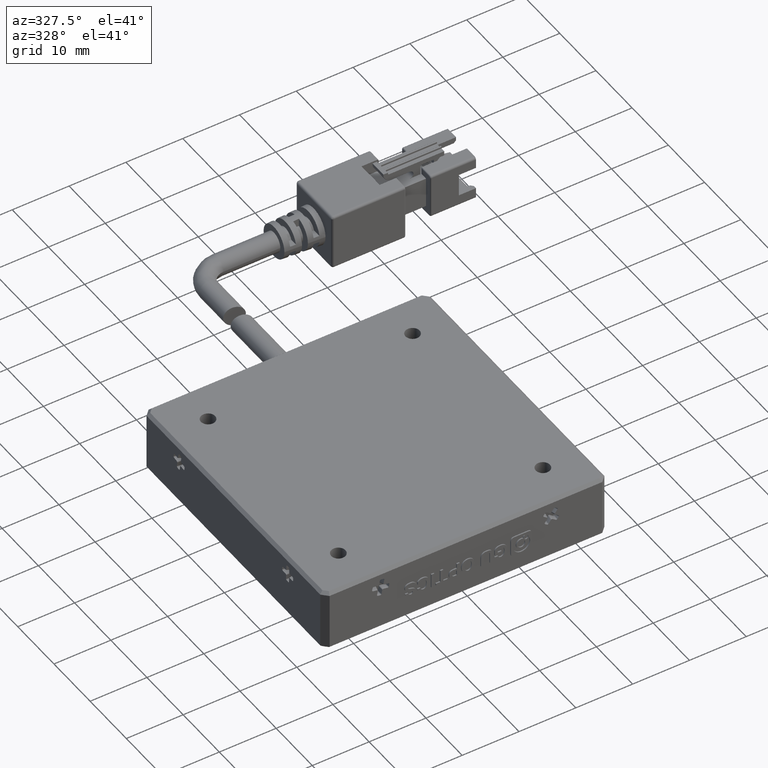
[diagram: clean part render]
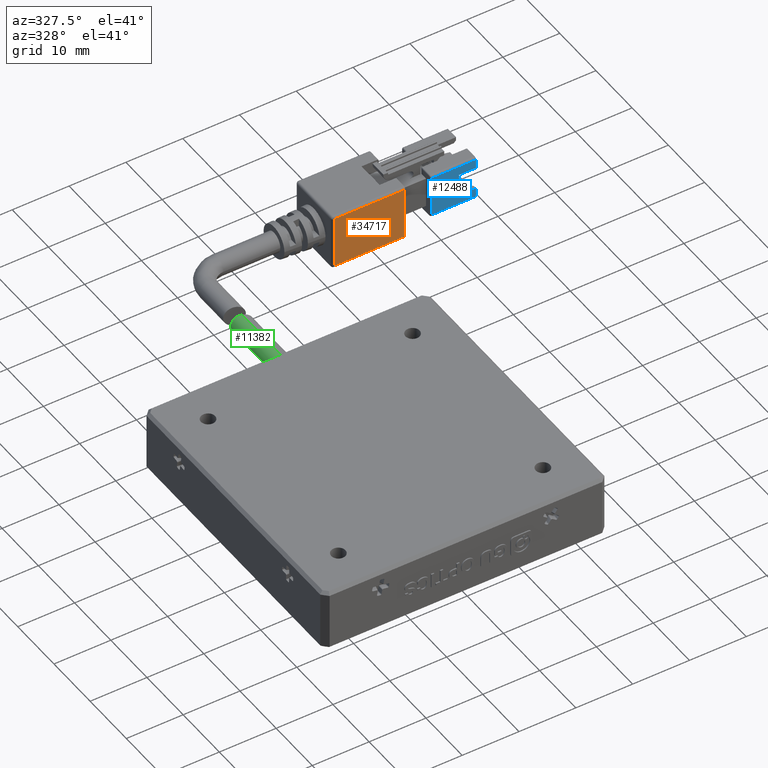
[diagram: same view with three faces highlighted in distinct colors, each labeled with its STEP entity id]
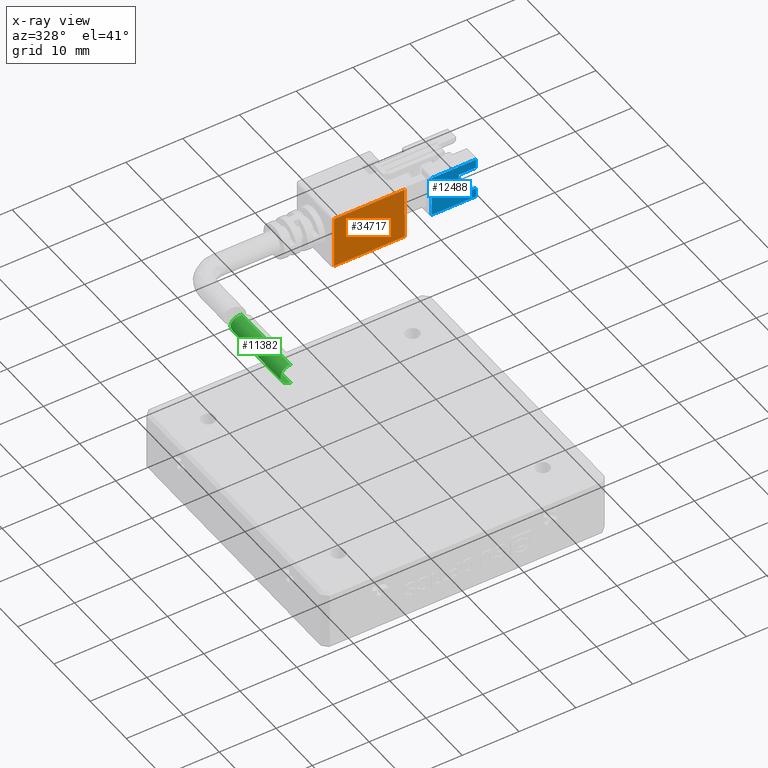
[diagram: x-ray of the same camera — body ghosted, the three highlighted faces saturated]
A machine part, auxiliary view with three faces highlighted in distinct colors.
The next image is the same camera in x-ray (body ghosted, the three faces saturated) — at least one of them is partly hidden behind the body in this view.
Their STEP definitions:

[orange] entity #34717 — the highlighted planar face has unit normal (0, 1, -0).
#2721 = EDGE_CURVE ( 'NONE', #19590, #29000, #23058, .T. ) ;
#3935 = VERTEX_POINT ( 'NONE', #39005 ) ;
#4301 = ORIENTED_EDGE ( 'NONE', *, *, #2721, .F. ) ;
#5488 = DIRECTION ( 'NONE',  ( -1.000000000000000000, -0.0000000000000000000, -0.0000000000000000000 ) ) ;
#6824 = DIRECTION ( 'NONE',  ( 0.0000000000000000000, 8.673617379884034200E-017, 1.000000000000000000 ) ) ;
#7970 = DIRECTION ( 'NONE',  ( 1.000000000000000000, 0.0000000000000000000, 0.0000000000000000000 ) ) ;
#8782 = LINE ( 'NONE', #22931, #16406 ) ;
#9536 = CARTESIAN_POINT ( 'NONE',  ( 40.66702531645572100, 59.21113924050632700, 3.349999999999991700 ) ) ;
#10172 = EDGE_LOOP ( 'NONE', ( #15700, #27868, #4301, #20556 ) ) ;
#10892 = EDGE_CURVE ( 'NONE', #29000, #30899, #40253, .T. ) ;
#14318 = VECTOR ( 'NONE', #7970, 1000.000000000000000 ) ;
#15015 = EDGE_CURVE ( 'NONE', #3935, #19590, #33910, .T. ) ;
#15292 = CARTESIAN_POINT ( 'NONE',  ( 53.06702531645572000, 59.21113924050632700, 3.349999999999990800 ) ) ;
#15700 = ORIENTED_EDGE ( 'NONE', *, *, #21250, .F. ) ;
#16406 = VECTOR ( 'NONE', #22642, 1000.000000000000000 ) ;
#18608 = DIRECTION ( 'NONE',  ( 0.0000000000000000000, 1.000000000000000000, -8.673617379884034200E-017 ) ) ;
#19590 = VERTEX_POINT ( 'NONE', #31488 ) ;
#20556 = ORIENTED_EDGE ( 'NONE', *, *, #15015, .F. ) ;
#21196 = CARTESIAN_POINT ( 'NONE',  ( 40.66702531645572100, 59.21113924050632700, -6.250000000000008900 ) ) ;
#21250 = EDGE_CURVE ( 'NONE', #30899, #3935, #8782, .T. ) ;
#22642 = DIRECTION ( 'NONE',  ( -0.0000000000000000000, -8.673617379884034200E-017, -1.000000000000000000 ) ) ;
#22931 = CARTESIAN_POINT ( 'NONE',  ( 53.06702531645572000, 59.21113924050632700, -6.250000000000008900 ) ) ;
#23058 = LINE ( 'NONE', #21196, #39335 ) ;
#25254 = VECTOR ( 'NONE', #5488, 1000.000000000000000 ) ;
#27212 = AXIS2_PLACEMENT_3D ( 'NONE', #38062, #18608, #41389 ) ;
#27466 = CARTESIAN_POINT ( 'NONE',  ( 53.26702531645571500, 59.21113924050632700, 3.349999999999991700 ) ) ;
#27868 = ORIENTED_EDGE ( 'NONE', *, *, #10892, .F. ) ;
#29000 = VERTEX_POINT ( 'NONE', #9536 ) ;
#30899 = VERTEX_POINT ( 'NONE', #15292 ) ;
#31377 = PLANE ( 'NONE',  #27212 ) ;
#31421 = CARTESIAN_POINT ( 'NONE',  ( 53.26702531645571500, 59.21113924050632700, -5.850000000000009400 ) ) ;
#31488 = CARTESIAN_POINT ( 'NONE',  ( 40.66702531645572100, 59.21113924050632700, -5.850000000000009400 ) ) ;
#33910 = LINE ( 'NONE', #31421, #25254 ) ;
#34717 = ADVANCED_FACE ( 'NONE', ( #39523 ), #31377, .F. ) ;
#38062 = CARTESIAN_POINT ( 'NONE',  ( 53.26702531645571500, 59.21113924050632700, -6.250000000000008900 ) ) ;
#39005 = CARTESIAN_POINT ( 'NONE',  ( 53.06702531645572000, 59.21113924050632700, -5.850000000000009400 ) ) ;
#39335 = VECTOR ( 'NONE', #6824, 1000.000000000000000 ) ;
#39523 = FACE_OUTER_BOUND ( 'NONE', #10172, .T. ) ;
#40253 = LINE ( 'NONE', #27466, #14318 ) ;
#41389 = DIRECTION ( 'NONE',  ( 0.0000000000000000000, 8.673617379884034200E-017, 1.000000000000000000 ) ) ;

[blue] entity #12488 — the highlighted planar face has unit normal (0, 1, -0).
#1308 = DIRECTION ( 'NONE',  ( -0.0000000000000000000, -8.673617379884034200E-017, -1.000000000000000000 ) ) ;
#1590 = CARTESIAN_POINT ( 'NONE',  ( 63.26702531645572900, 60.21113924050634100, -5.250000000000000900 ) ) ;
#3668 = CARTESIAN_POINT ( 'NONE',  ( 63.26702531645572900, 60.21113924050634100, 0.7499999999999997800 ) ) ;
#4091 = EDGE_CURVE ( 'NONE', #34278, #22141, #28215, .T. ) ;
#4109 = ORIENTED_EDGE ( 'NONE', *, *, #37075, .F. ) ;
#4428 = LINE ( 'NONE', #30375, #29248 ) ;
#4490 = ORIENTED_EDGE ( 'NONE', *, *, #11847, .F. ) ;
#6091 = CARTESIAN_POINT ( 'NONE',  ( 66.26702531645572900, 60.21113924050634100, -4.850000000000000500 ) ) ;
#6319 = CARTESIAN_POINT ( 'NONE',  ( 66.26702531645572900, 60.21113924050634100, 2.350000000000000500 ) ) ;
#6558 = VERTEX_POINT ( 'NONE', #22929 ) ;
#6639 = DIRECTION ( 'NONE',  ( 1.000000000000000000, 0.0000000000000000000, 0.0000000000000000000 ) ) ;
#6889 = ORIENTED_EDGE ( 'NONE', *, *, #19531, .F. ) ;
#7015 = LINE ( 'NONE', #7517, #23186 ) ;
#7432 = VECTOR ( 'NONE', #20523, 1000.000000000000000 ) ;
#7517 = CARTESIAN_POINT ( 'NONE',  ( 66.26702531645572900, 60.21113924050634100, 0.7499999999999997800 ) ) ;
#8277 = DIRECTION ( 'NONE',  ( 0.0000000000000000000, 1.000000000000000000, -8.673617379884034200E-017 ) ) ;
#8924 = EDGE_LOOP ( 'NONE', ( #42154, #25329, #6889, #38362, #4109, #17506, #4490, #20056 ) ) ;
#9140 = LINE ( 'NONE', #9842, #25327 ) ;
#9716 = VERTEX_POINT ( 'NONE', #6319 ) ;
#9842 = CARTESIAN_POINT ( 'NONE',  ( 66.26702531645572900, 60.21113924050634100, 2.350000000000000500 ) ) ;
#10754 = VERTEX_POINT ( 'NONE', #6091 ) ;
#11096 = CARTESIAN_POINT ( 'NONE',  ( 66.26702531645572900, 60.21113924050634100, -4.850000000000000500 ) ) ;
#11286 = CARTESIAN_POINT ( 'NONE',  ( 66.26702531645572900, 60.21113924050634100, -3.250000000000000400 ) ) ;
#11847 = EDGE_CURVE ( 'NONE', #9716, #37979, #4428, .T. ) ;
#12488 = ADVANCED_FACE ( 'NONE', ( #23062 ), #14646, .F. ) ;
#14646 = PLANE ( 'NONE',  #23760 ) ;
#15535 = VECTOR ( 'NONE', #40537, 1000.000000000000000 ) ;
#16430 = CARTESIAN_POINT ( 'NONE',  ( 66.26702531645572900, 60.21113924050634100, 0.7499999999999997800 ) ) ;
#17289 = DIRECTION ( 'NONE',  ( 1.000000000000000000, 0.0000000000000000000, 0.0000000000000000000 ) ) ;
#17339 = VERTEX_POINT ( 'NONE', #40598 ) ;
#17472 = DIRECTION ( 'NONE',  ( -1.000000000000000000, -0.0000000000000000000, -0.0000000000000000000 ) ) ;
#17506 = ORIENTED_EDGE ( 'NONE', *, *, #18816, .F. ) ;
#18816 = EDGE_CURVE ( 'NONE', #37979, #41832, #7015, .T. ) ;
#19531 = EDGE_CURVE ( 'NONE', #22141, #10754, #24070, .T. ) ;
#20056 = ORIENTED_EDGE ( 'NONE', *, *, #32788, .F. ) ;
#20523 = DIRECTION ( 'NONE',  ( -0.0000000000000000000, 8.673617379884034200E-017, 1.000000000000000000 ) ) ;
#20649 = LINE ( 'NONE', #11096, #37924 ) ;
#20694 = CARTESIAN_POINT ( 'NONE',  ( 66.26702531645572900, 60.21113924050634100, -3.250000000000000400 ) ) ;
#22141 = VERTEX_POINT ( 'NONE', #11286 ) ;
#22929 = CARTESIAN_POINT ( 'NONE',  ( 58.46702531645571800, 60.21113924050633400, -4.850000000000000500 ) ) ;
#23062 = FACE_OUTER_BOUND ( 'NONE', #8924, .T. ) ;
#23186 = VECTOR ( 'NONE', #36847, 1000.000000000000000 ) ;
#23760 = AXIS2_PLACEMENT_3D ( 'NONE', #27644, #8277, #30924 ) ;
#24070 = LINE ( 'NONE', #34453, #31698 ) ;
#25104 = LINE ( 'NONE', #1590, #15535 ) ;
#25327 = VECTOR ( 'NONE', #6639, 1000.000000000000000 ) ;
#25329 = ORIENTED_EDGE ( 'NONE', *, *, #26317, .F. ) ;
#26075 = LINE ( 'NONE', #40012, #7432 ) ;
#26317 = EDGE_CURVE ( 'NONE', #10754, #6558, #20649, .T. ) ;
#27644 = CARTESIAN_POINT ( 'NONE',  ( 66.26702531645572900, 60.21113924050634100, -5.250000000000000900 ) ) ;
#28215 = LINE ( 'NONE', #20694, #36450 ) ;
#28265 = CARTESIAN_POINT ( 'NONE',  ( 63.26702531645572900, 60.21113924050634100, -3.250000000000000400 ) ) ;
#29248 = VECTOR ( 'NONE', #1308, 1000.000000000000000 ) ;
#29694 = EDGE_CURVE ( 'NONE', #6558, #17339, #26075, .T. ) ;
#30375 = CARTESIAN_POINT ( 'NONE',  ( 66.26702531645572900, 60.21113924050634100, -5.250000000000000900 ) ) ;
#30924 = DIRECTION ( 'NONE',  ( 0.0000000000000000000, 8.673617379884034200E-017, 1.000000000000000000 ) ) ;
#31698 = VECTOR ( 'NONE', #37753, 1000.000000000000000 ) ;
#32788 = EDGE_CURVE ( 'NONE', #17339, #9716, #9140, .T. ) ;
#34278 = VERTEX_POINT ( 'NONE', #28265 ) ;
#34453 = CARTESIAN_POINT ( 'NONE',  ( 66.26702531645572900, 60.21113924050634100, -5.250000000000000900 ) ) ;
#36450 = VECTOR ( 'NONE', #17289, 1000.000000000000000 ) ;
#36847 = DIRECTION ( 'NONE',  ( -1.000000000000000000, -0.0000000000000000000, -0.0000000000000000000 ) ) ;
#37075 = EDGE_CURVE ( 'NONE', #41832, #34278, #25104, .T. ) ;
#37753 = DIRECTION ( 'NONE',  ( -0.0000000000000000000, -8.673617379884034200E-017, -1.000000000000000000 ) ) ;
#37924 = VECTOR ( 'NONE', #17472, 1000.000000000000000 ) ;
#37979 = VERTEX_POINT ( 'NONE', #16430 ) ;
#38362 = ORIENTED_EDGE ( 'NONE', *, *, #4091, .F. ) ;
#40012 = CARTESIAN_POINT ( 'NONE',  ( 58.46702531645571800, 60.21113924050634100, -5.250000000000000900 ) ) ;
#40537 = DIRECTION ( 'NONE',  ( -0.0000000000000000000, -8.673617379884034200E-017, -1.000000000000000000 ) ) ;
#40598 = CARTESIAN_POINT ( 'NONE',  ( 58.46702531645571800, 60.21113924050633400, 2.350000000000000500 ) ) ;
#41832 = VERTEX_POINT ( 'NONE', #3668 ) ;
#42154 = ORIENTED_EDGE ( 'NONE', *, *, #29694, .F. ) ;

[green] entity #11382 — the highlighted cylindrical surface (edge-blend (fillet) strip) has radius 1.75 mm, axis along (0, -1, -0).
#857 = CARTESIAN_POINT ( 'NONE',  ( 19.26702531645571900, 60.21113924050633400, -3.000000000000000900 ) ) ;
#1365 = CARTESIAN_POINT ( 'NONE',  ( 18.50102390046932000, 51.26736422642111500, 0.3275414602276816000 ) ) ;
#1504 = CARTESIAN_POINT ( 'NONE',  ( 17.60815372889123200, 51.47465085117010400, -1.819255601319850000 ) ) ;
#2734 = CARTESIAN_POINT ( 'NONE',  ( 19.26702531645571900, 37.71113924050633400, 0.4999999999999993300 ) ) ;
#3818 = VERTEX_POINT ( 'NONE', #2734 ) ;
#4659 = CARTESIAN_POINT ( 'NONE',  ( 18.21143578472794300, 51.33770603410356200, 0.1503924452868985700 ) ) ;
#4804 = CARTESIAN_POINT ( 'NONE',  ( 17.75357687663365200, 51.44324414000529800, -2.136094452726339500 ) ) ;
#4822 = EDGE_CURVE ( 'NONE', #26710, #3818, #17496, .T. ) ;
#4971 = EDGE_LOOP ( 'NONE', ( #26602, #8366, #16463, #26039 ) ) ;
#5047 = VECTOR ( 'NONE', #13906, 1000.000000000000000 ) ;
#5954 = VECTOR ( 'NONE', #41139, 1000.000000000000000 ) ;
#7611 = AXIS2_PLACEMENT_3D ( 'NONE', #14313, #37041, #17570 ) ;
#7794 = CARTESIAN_POINT ( 'NONE',  ( 19.15317297883747800, 51.10560421977334800, 0.5000000000000097700 ) ) ;
#7934 = CARTESIAN_POINT ( 'NONE',  ( 17.95791399073090100, 51.39723628691662300, -0.08303274940463600800 ) ) ;
#8079 = CARTESIAN_POINT ( 'NONE',  ( 17.95562652657233100, 51.39776500738536700, -2.414518377249289700 ) ) ;
#8366 = ORIENTED_EDGE ( 'NONE', *, *, #36569, .T. ) ;
#9533 = EDGE_CURVE ( 'NONE', #9917, #3818, #17602, .T. ) ;
#9807 = CARTESIAN_POINT ( 'NONE',  ( 19.26702531645571900, 51.07774175742921600, 0.4999999999999994400 ) ) ;
#9917 = VERTEX_POINT ( 'NONE', #9807 ) ;
#11158 = CARTESIAN_POINT ( 'NONE',  ( 17.75500086051044900, 51.44293161477345700, -0.3614208541719510800 ) ) ;
#11298 = CARTESIAN_POINT ( 'NONE',  ( 18.20907445193660500, 51.33827074209570200, -2.648609730858203300 ) ) ;
#11338 = AXIS2_PLACEMENT_3D ( 'NONE', #24716, #11831, #24855 ) ;
#11382 = ADVANCED_FACE ( 'NONE', ( #26346 ), #14732, .T. ) ;
#11831 = DIRECTION ( 'NONE',  ( 0.0000000000000000000, -1.000000000000000000, -2.465190328815661900E-032 ) ) ;
#13906 = DIRECTION ( 'NONE',  ( 0.0000000000000000000, -1.000000000000000000, -2.465190328815661900E-032 ) ) ;
#14313 = CARTESIAN_POINT ( 'NONE',  ( 19.26702531645571900, 37.71113924050633400, -1.250000000000000700 ) ) ;
#14424 = CARTESIAN_POINT ( 'NONE',  ( 17.56476368497835900, 51.48397505759760400, -0.7831707669404006600 ) ) ;
#14573 = CARTESIAN_POINT ( 'NONE',  ( 18.50031593087591400, 51.26753817131285700, -2.827185977533176700 ) ) ;
#14732 = CYLINDRICAL_SURFACE ( 'NONE', #11338, 1.750000000000000200 ) ;
#16463 = ORIENTED_EDGE ( 'NONE', *, *, #23968, .T. ) ;
#17098 = B_SPLINE_CURVE_WITH_KNOTS ( 'NONE', 3,
 ( #30425, #7794, #17533, #40289, #20793, #1365, #24038, #4659, #27301, #7934, #30558, #11158, #33857, #14424, #37140, #17690, #40444, #20926, #1504, #24184, #4804, #27430, #8079, #30702, #11298, #33983, #14573, #37264, #17818, #40588 ),
 .UNSPECIFIED., .F., .F.,
 ( 4, 2, 2, 2, 2, 2, 2, 2, 2, 2, 2, 2, 2, 2, 4 ),
 ( 1.672367353965386900E-016, 0.0003467046392156072400, 0.0006934092784310471800, 0.001040113917646487300, 0.001386818556861927200, 0.001733523196077367300, 0.002080227835292807600, 0.002773637113723683100, 0.003120341752939122100, 0.003467046392154560200, 0.003813751031369998800, 0.004160455670585437400, 0.004507160309800876400, 0.004853864949016315500, 0.005547274227447197800 ),
 .UNSPECIFIED. ) ;
#17496 = CIRCLE ( 'NONE', #7611, 1.750000000000000200 ) ;
#17533 = CARTESIAN_POINT ( 'NONE',  ( 19.04121266120223800, 51.13336203157422900, 0.4889997738812938400 ) ) ;
#17570 = DIRECTION ( 'NONE',  ( 0.0000000000000000000, 0.0000000000000000000, -1.000000000000000000 ) ) ;
#17602 = LINE ( 'NONE', #21574, #5954 ) ;
#17690 = CARTESIAN_POINT ( 'NONE',  ( 17.51689869884022600, 51.49369115073919500, -1.363737001967047400 ) ) ;
#17818 = CARTESIAN_POINT ( 'NONE',  ( 19.03930749363687600, 51.13346989965365500, -3.000000000000000000 ) ) ;
#18005 = CARTESIAN_POINT ( 'NONE',  ( 19.26702531645571900, 51.07774175742920900, -3.000000000000000900 ) ) ;
#20793 = CARTESIAN_POINT ( 'NONE',  ( 18.71132189873969800, 51.21538196720288700, 0.4133066282466355000 ) ) ;
#20926 = CARTESIAN_POINT ( 'NONE',  ( 17.57427517691907000, 51.48175972272255800, -1.708910500435165500 ) ) ;
#21574 = CARTESIAN_POINT ( 'NONE',  ( 19.26702531645571900, 60.21113924050633400, 0.4999999999999993300 ) ) ;
#22213 = LINE ( 'NONE', #857, #5047 ) ;
#23968 = EDGE_CURVE ( 'NONE', #39841, #26710, #22213, .T. ) ;
#24038 = CARTESIAN_POINT ( 'NONE',  ( 18.40106216585688900, 51.29187514963752600, 0.2749511736822387600 ) ) ;
#24184 = CARTESIAN_POINT ( 'NONE',  ( 17.69761553288155700, 51.45544030224126400, -2.032853635671762100 ) ) ;
#24716 = CARTESIAN_POINT ( 'NONE',  ( 19.26702531645571900, 60.21113924050633400, -1.250000000000000700 ) ) ;
#24855 = DIRECTION ( 'NONE',  ( 0.0000000000000000000, 0.0000000000000000000, -1.000000000000000000 ) ) ;
#26039 = ORIENTED_EDGE ( 'NONE', *, *, #4822, .T. ) ;
#26346 = FACE_OUTER_BOUND ( 'NONE', #4971, .T. ) ;
#26602 = ORIENTED_EDGE ( 'NONE', *, *, #9533, .F. ) ;
#26710 = VERTEX_POINT ( 'NONE', #27042 ) ;
#27042 = CARTESIAN_POINT ( 'NONE',  ( 19.26702531645571900, 37.71113924050633400, -3.000000000000000900 ) ) ;
#27301 = CARTESIAN_POINT ( 'NONE',  ( 18.12096315045224800, 51.35920930155752700, 0.07745114364278009300 ) ) ;
#27430 = CARTESIAN_POINT ( 'NONE',  ( 17.88236043506194100, 51.41445407906582700, -2.326286544274801700 ) ) ;
#30425 = CARTESIAN_POINT ( 'NONE',  ( 19.26702531645571900, 51.07774175742921600, 0.4999999999999994400 ) ) ;
#30558 = CARTESIAN_POINT ( 'NONE',  ( 17.88463732690676300, 51.41393909088924400, -0.1707436355860887100 ) ) ;
#30702 = CARTESIAN_POINT ( 'NONE',  ( 18.12024489746716000, 51.35938150031366000, -2.576938019533455900 ) ) ;
#33857 = CARTESIAN_POINT ( 'NONE',  ( 17.69895563442609500, 51.45514902799351400, -0.4645456595006566300 ) ) ;
#33983 = CARTESIAN_POINT ( 'NONE',  ( 18.39849770841894000, 51.29250080408078100, -2.773492371187299200 ) ) ;
#36569 = EDGE_CURVE ( 'NONE', #9917, #39841, #17098, .T. ) ;
#37041 = DIRECTION ( 'NONE',  ( -0.0000000000000000000, 1.000000000000000000, 2.465190328815661900E-032 ) ) ;
#37140 = CARTESIAN_POINT ( 'NONE',  ( 17.51728175034934800, 51.49361208396219100, -1.016730657650448200 ) ) ;
#37264 = CARTESIAN_POINT ( 'NONE',  ( 18.81524837520401100, 51.18969511967041800, -2.955823306795507300 ) ) ;
#39841 = VERTEX_POINT ( 'NONE', #18005 ) ;
#40289 = CARTESIAN_POINT ( 'NONE',  ( 18.82078953236179000, 51.18812667597906300, 0.4458729887069650100 ) ) ;
#40444 = CARTESIAN_POINT ( 'NONE',  ( 17.52846102426578800, 51.49131695294686800, -1.481075927420258700 ) ) ;
#40588 = CARTESIAN_POINT ( 'NONE',  ( 19.26702531645571900, 51.07774175742920900, -3.000000000000000900 ) ) ;
#41139 = DIRECTION ( 'NONE',  ( 0.0000000000000000000, -1.000000000000000000, -2.465190328815661900E-032 ) ) ;